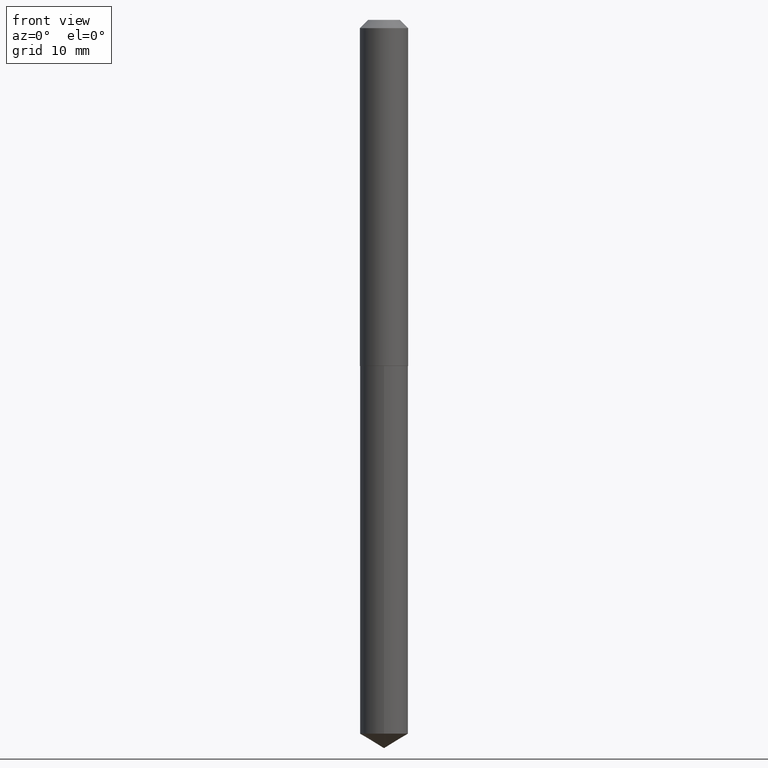
[diagram: clean part render]
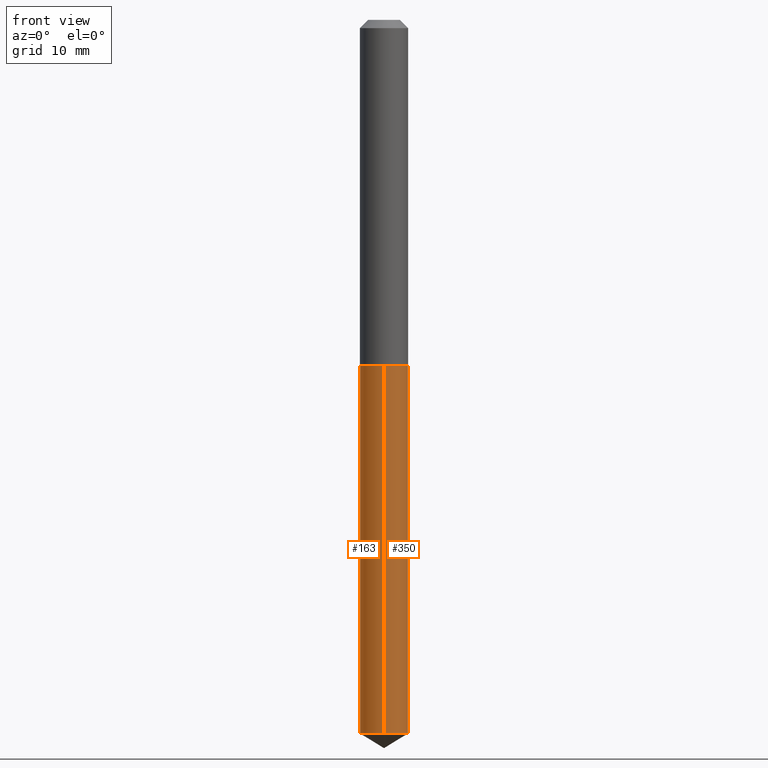
[diagram: same view with one multi-face feature highlighted, each face labeled with its STEP entity id]
A machine part, front view. The highlighted faces form ONE feature: a constant-radius fillet chain: 2 tangent blend faces with common blend radius 2.3114 mm. The faces share edges in the B-rep.
Their STEP definitions:
[1] entity #350 (Cylinder):
#6 = CIRCLE ( 'NONE', #234, 0.09099999999999999756 ) ;
#7 = DIRECTION ( 'NONE',  ( -2.445415918018123002E-29, 3.491557077708516462E-15, 1.000000000000000000 ) ) ;
#10 = CARTESIAN_POINT ( 'NONE',  ( 6.465938895417571203E-16, 0.09099999999999544564, -1.306999999999999940 ) ) ;
#12 = VECTOR ( 'NONE', #218, 39.37007874015748143 ) ;
#23 = DIRECTION ( 'NONE',  ( -6.982962677686265922E-15, -1.000000000000000000, 3.002030762268421058E-15 ) ) ;
#46 = DIRECTION ( 'NONE',  ( -6.982962677686265922E-15, -1.000000000000000000, 6.004061524536842117E-15 ) ) ;
#60 = VERTEX_POINT ( 'NONE', #246 ) ;
#63 = EDGE_LOOP ( 'NONE', ( #211, #98, #239, #194 ) ) ;
#66 = DIRECTION ( 'NONE',  ( -2.445415918018123002E-29, 3.491557077708516462E-15, 1.000000000000000000 ) ) ;
#84 = EDGE_CURVE ( 'NONE', #60, #244, #363, .T. ) ;
#98 = ORIENTED_EDGE ( 'NONE', *, *, #340, .T. ) ;
#114 = CARTESIAN_POINT ( 'NONE',  ( 3.196227729683973209E-29, -4.563366109867990978E-15, -1.306999999999999718 ) ) ;
#123 = VERTEX_POINT ( 'NONE', #152 ) ;
#138 = CARTESIAN_POINT ( 'NONE',  ( 6.591251674256625634E-29, -9.410770510616920371E-15, -2.695321683668492341 ) ) ;
#141 = DIRECTION ( 'NONE',  ( -2.445415918018123283E-29, 3.491557077708516462E-15, 1.000000000000000000 ) ) ;
#142 = CARTESIAN_POINT ( 'NONE',  ( 6.465938895417229034E-16, 0.09099999999999544564, -1.306999999999999940 ) ) ;
#144 = AXIS2_PLACEMENT_3D ( 'NONE', #114, #318, #237 ) ;
#145 = EDGE_CURVE ( 'NONE', #244, #284, #254, .T. ) ;
#152 = CARTESIAN_POINT ( 'NONE',  ( 6.465938895417569231E-16, 0.09099999999999058842, -2.695321683668492785 ) ) ;
#194 = ORIENTED_EDGE ( 'NONE', *, *, #84, .F. ) ;
#207 = LINE ( 'NONE', #142, #209 ) ;
#209 = VECTOR ( 'NONE', #141, 39.37007874015748143 ) ;
#211 = ORIENTED_EDGE ( 'NONE', *, *, #371, .T. ) ;
#218 = DIRECTION ( 'NONE',  ( -2.445415918018123283E-29, 3.491557077708516462E-15, 1.000000000000000000 ) ) ;
#234 = AXIS2_PLACEMENT_3D ( 'NONE', #138, #7, #46 ) ;
#237 = DIRECTION ( 'NONE',  ( -6.982962677686265922E-15, -1.000000000000000000, 3.002030762268421058E-15 ) ) ;
#239 = ORIENTED_EDGE ( 'NONE', *, *, #145, .F. ) ;
#244 = VERTEX_POINT ( 'NONE', #367 ) ;
#246 = CARTESIAN_POINT ( 'NONE',  ( -6.354496036693843061E-16, -0.09100000000000940670, -2.695321683668491453 ) ) ;
#254 = CIRCLE ( 'NONE', #380, 0.09099999999999999756 ) ;
#256 = FACE_OUTER_BOUND ( 'NONE', #63, .T. ) ;
#271 = CARTESIAN_POINT ( 'NONE',  ( -6.354496036694183257E-16, -0.09100000000000456335, -1.306999999999999496 ) ) ;
#273 = CARTESIAN_POINT ( 'NONE',  ( 3.196227729683973209E-29, -4.563366109867990978E-15, -1.306999999999999718 ) ) ;
#284 = VERTEX_POINT ( 'NONE', #10 ) ;
#318 = DIRECTION ( 'NONE',  ( -2.445415918018123002E-29, 3.491557077708516462E-15, 1.000000000000000000 ) ) ;
#340 = EDGE_CURVE ( 'NONE', #123, #284, #207, .T. ) ;
#350 = ADVANCED_FACE ( 'NONE', ( #256 ), #378, .T. ) ;
#363 = LINE ( 'NONE', #271, #12 ) ;
#367 = CARTESIAN_POINT ( 'NONE',  ( -6.354496036694183257E-16, -0.09100000000000456335, -1.306999999999999496 ) ) ;
#371 = EDGE_CURVE ( 'NONE', #60, #123, #6, .T. ) ;
#378 = CYLINDRICAL_SURFACE ( 'NONE', #144, 0.09099999999999999756 ) ;
#380 = AXIS2_PLACEMENT_3D ( 'NONE', #273, #66, #23 ) ;
[2] entity #163 (Cylinder):
#8 = ORIENTED_EDGE ( 'NONE', *, *, #155, .T. ) ;
#10 = CARTESIAN_POINT ( 'NONE',  ( 6.465938895417571203E-16, 0.09099999999999544564, -1.306999999999999940 ) ) ;
#12 = VECTOR ( 'NONE', #218, 39.37007874015748143 ) ;
#18 = CYLINDRICAL_SURFACE ( 'NONE', #345, 0.09099999999999999756 ) ;
#60 = VERTEX_POINT ( 'NONE', #246 ) ;
#64 = DIRECTION ( 'NONE',  ( -2.445415918018123002E-29, 3.491557077708516462E-15, 1.000000000000000000 ) ) ;
#84 = EDGE_CURVE ( 'NONE', #60, #244, #363, .T. ) ;
#88 = CIRCLE ( 'NONE', #281, 0.09099999999999999756 ) ;
#99 = CARTESIAN_POINT ( 'NONE',  ( 3.196227729683973209E-29, -4.563366109867990978E-15, -1.306999999999999718 ) ) ;
#103 = DIRECTION ( 'NONE',  ( -6.982962677686265922E-15, -1.000000000000000000, 3.002030762268421058E-15 ) ) ;
#106 = AXIS2_PLACEMENT_3D ( 'NONE', #224, #64, #192 ) ;
#123 = VERTEX_POINT ( 'NONE', #152 ) ;
#140 = EDGE_CURVE ( 'NONE', #284, #244, #88, .T. ) ;
#141 = DIRECTION ( 'NONE',  ( -2.445415918018123283E-29, 3.491557077708516462E-15, 1.000000000000000000 ) ) ;
#142 = CARTESIAN_POINT ( 'NONE',  ( 6.465938895417229034E-16, 0.09099999999999544564, -1.306999999999999940 ) ) ;
#150 = DIRECTION ( 'NONE',  ( -6.982962677686265922E-15, -1.000000000000000000, 3.002030762268421058E-15 ) ) ;
#152 = CARTESIAN_POINT ( 'NONE',  ( 6.465938895417569231E-16, 0.09099999999999058842, -2.695321683668492785 ) ) ;
#155 = EDGE_CURVE ( 'NONE', #123, #60, #370, .T. ) ;
#161 = DIRECTION ( 'NONE',  ( -2.445415918018123002E-29, 3.491557077708516462E-15, 1.000000000000000000 ) ) ;
#163 = ADVANCED_FACE ( 'NONE', ( #339 ), #18, .T. ) ;
#180 = ORIENTED_EDGE ( 'NONE', *, *, #340, .F. ) ;
#192 = DIRECTION ( 'NONE',  ( -6.982962677686265922E-15, -1.000000000000000000, 6.004061524536842117E-15 ) ) ;
#207 = LINE ( 'NONE', #142, #209 ) ;
#209 = VECTOR ( 'NONE', #141, 39.37007874015748143 ) ;
#214 = DIRECTION ( 'NONE',  ( -2.445415918018123002E-29, 3.491557077708516462E-15, 1.000000000000000000 ) ) ;
#218 = DIRECTION ( 'NONE',  ( -2.445415918018123283E-29, 3.491557077708516462E-15, 1.000000000000000000 ) ) ;
#224 = CARTESIAN_POINT ( 'NONE',  ( 6.591251674256625634E-29, -9.410770510616920371E-15, -2.695321683668492341 ) ) ;
#244 = VERTEX_POINT ( 'NONE', #367 ) ;
#246 = CARTESIAN_POINT ( 'NONE',  ( -6.354496036693843061E-16, -0.09100000000000940670, -2.695321683668491453 ) ) ;
#271 = CARTESIAN_POINT ( 'NONE',  ( -6.354496036694183257E-16, -0.09100000000000456335, -1.306999999999999496 ) ) ;
#275 = CARTESIAN_POINT ( 'NONE',  ( 3.196227729683973209E-29, -4.563366109867990978E-15, -1.306999999999999718 ) ) ;
#281 = AXIS2_PLACEMENT_3D ( 'NONE', #275, #214, #103 ) ;
#284 = VERTEX_POINT ( 'NONE', #10 ) ;
#335 = ORIENTED_EDGE ( 'NONE', *, *, #84, .T. ) ;
#339 = FACE_OUTER_BOUND ( 'NONE', #369, .T. ) ;
#340 = EDGE_CURVE ( 'NONE', #123, #284, #207, .T. ) ;
#345 = AXIS2_PLACEMENT_3D ( 'NONE', #99, #161, #150 ) ;
#362 = ORIENTED_EDGE ( 'NONE', *, *, #140, .F. ) ;
#363 = LINE ( 'NONE', #271, #12 ) ;
#367 = CARTESIAN_POINT ( 'NONE',  ( -6.354496036694183257E-16, -0.09100000000000456335, -1.306999999999999496 ) ) ;
#369 = EDGE_LOOP ( 'NONE', ( #180, #8, #335, #362 ) ) ;
#370 = CIRCLE ( 'NONE', #106, 0.09099999999999999756 ) ;